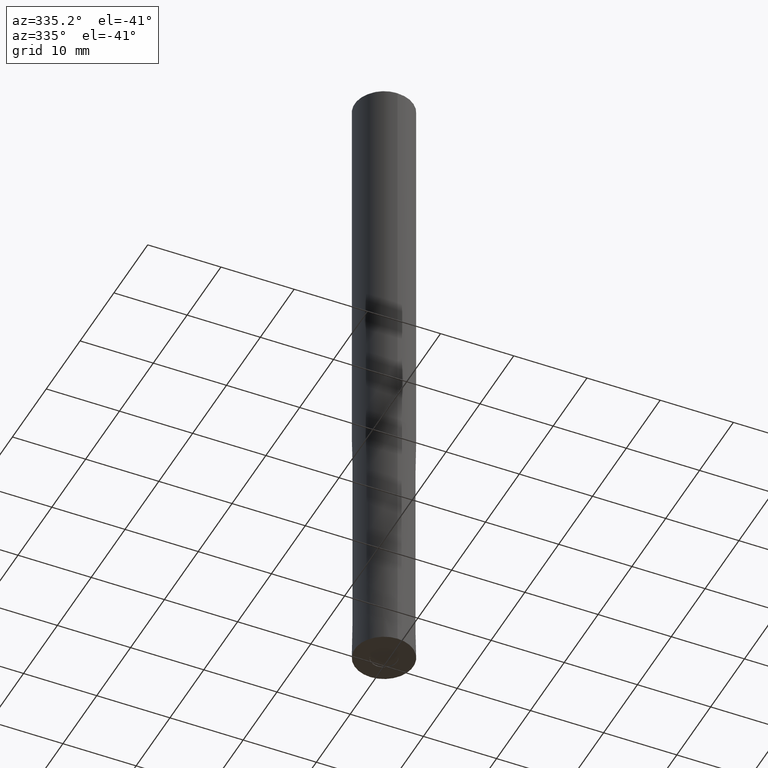
[diagram: clean part render]
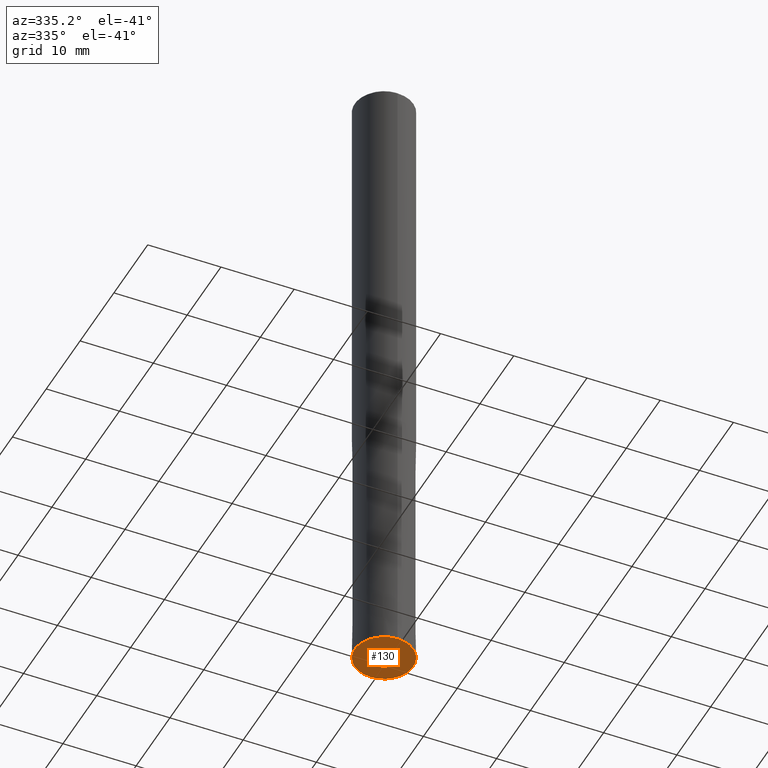
[diagram: same view with one face highlighted and labeled with its STEP entity id]
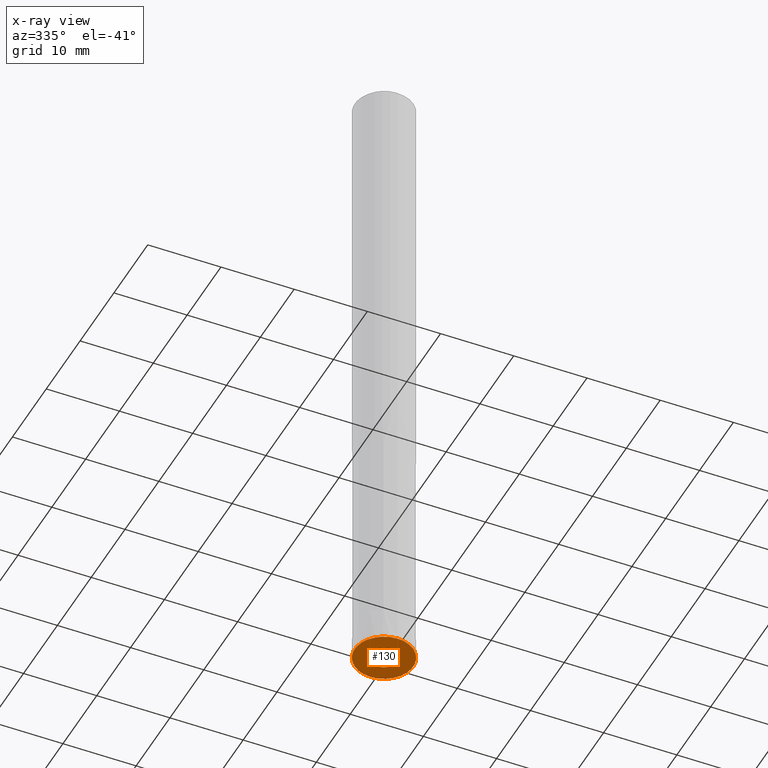
[diagram: x-ray of the same camera — body ghosted, the highlighted face saturated]
A machine part, auxiliary view. The second image highlights one B-rep face of the part: STEP entity #130.
The next image is the same camera in x-ray: the body ghosted, the highlighted face saturated — about 0% of this face is hidden behind the body in this view.
In plain terms, the highlighted planar face has unit normal (0, 0, -1).
Its self-contained STEP definition (entity closure, byte-faithful):
#122=EDGE_CURVE('',#214,#218,#271,.T.);
#130=ADVANCED_FACE('',(#280,#281),#282,.T.);
#134=EDGE_CURVE('',#218,#214,#287,.T.);
#156=EDGE_CURVE('',#178,#174,#310,.T.);
#174=VERTEX_POINT('',#331);
#178=VERTEX_POINT('',#336);
#190=EDGE_CURVE('',#174,#178,#351,.T.);
#214=VERTEX_POINT('',#377);
#218=VERTEX_POINT('',#381);
#271=CIRCLE('',#436,1.8);
#280=FACE_OUTER_BOUND('',#447,.T.);
#281=FACE_BOUND('',#448,.T.);
#282=PLANE('',#449);
#287=CIRCLE('',#455,1.8);
#310=CIRCLE('',#486,4.0);
#331=CARTESIAN_POINT('',(4.89842541528951E-016,-4.0,-90.0));
#336=CARTESIAN_POINT('',(0.0,4.0,-90.0));
#351=CIRCLE('',#535,4.0);
#377=CARTESIAN_POINT('',(2.20429143688028E-016,-1.8,-90.0));
#381=CARTESIAN_POINT('',(0.0,1.8,-90.0));
#436=AXIS2_PLACEMENT_3D('',#617,#618,#619);
#447=EDGE_LOOP('',(#635,#636));
#448=EDGE_LOOP('',(#637,#638));
#449=AXIS2_PLACEMENT_3D('',#639,#640,#641);
#455=AXIS2_PLACEMENT_3D('',#650,#651,#652);
#486=AXIS2_PLACEMENT_3D('',#672,#673,#674);
#535=AXIS2_PLACEMENT_3D('',#726,#727,#728);
#617=CARTESIAN_POINT('',(0.0,0.0,-90.0));
#618=DIRECTION('',(0.0,0.0,-1.0));
#619=DIRECTION('',(0.0,1.0,0.0));
#635=ORIENTED_EDGE('',*,*,#156,.T.);
#636=ORIENTED_EDGE('',*,*,#190,.T.);
#637=ORIENTED_EDGE('',*,*,#134,.F.);
#638=ORIENTED_EDGE('',*,*,#122,.F.);
#639=CARTESIAN_POINT('',(0.0,2.8975,-90.0));
#640=DIRECTION('',(0.0,0.0,-1.0));
#641=DIRECTION('',(0.0,1.0,0.0));
#650=CARTESIAN_POINT('',(0.0,0.0,-90.0));
#651=DIRECTION('',(0.0,0.0,-1.0));
#652=DIRECTION('',(0.0,1.0,0.0));
#672=CARTESIAN_POINT('',(0.0,0.0,-90.0));
#673=DIRECTION('',(0.0,0.0,-1.0));
#674=DIRECTION('',(0.0,1.0,0.0));
#726=CARTESIAN_POINT('',(0.0,0.0,-90.0));
#727=DIRECTION('',(0.0,0.0,-1.0));
#728=DIRECTION('',(0.0,1.0,0.0));